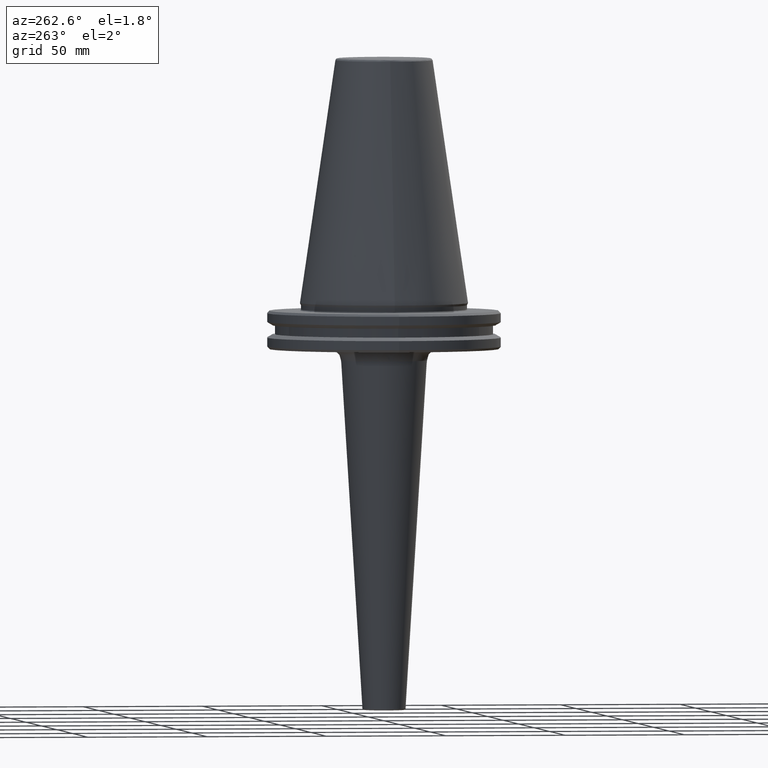
[diagram: clean part render]
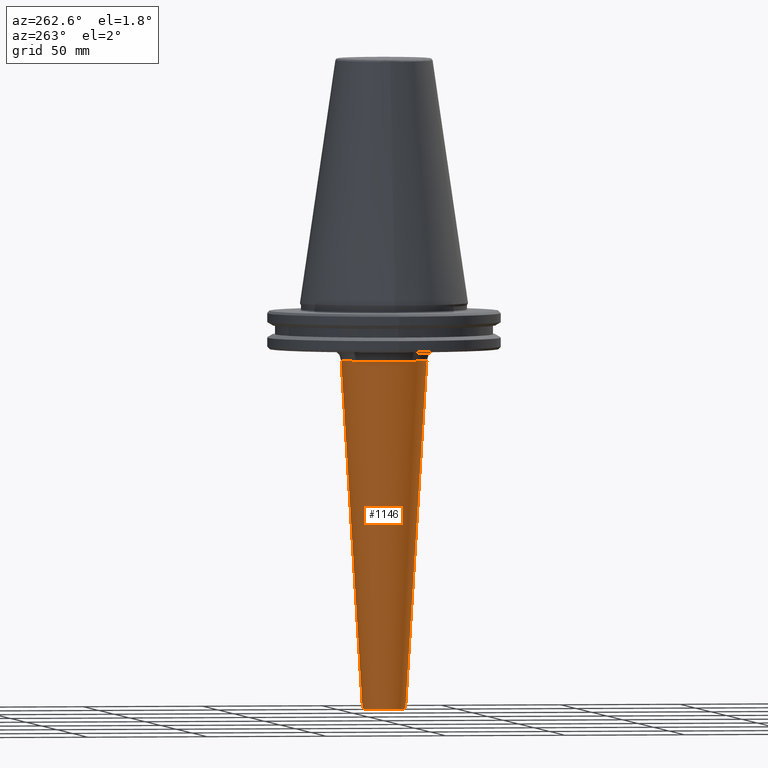
[diagram: same view with one face highlighted and labeled with its STEP entity id]
A machine part, auxiliary view. The second image highlights one B-rep face of the part: STEP entity #1146.
In plain terms, the highlighted conical surface has half-angle 3.529 deg.
Its self-contained STEP definition (entity closure, byte-faithful):
#9 = AXIS2_PLACEMENT_3D ( 'NONE', #1317, #1003, #1489 ) ;
#47 = DIRECTION ( 'NONE',  ( 0.0000000000000000000, -1.000000000000000000, -1.931694016260251200E-016 ) ) ;
#63 = VERTEX_POINT ( 'NONE', #1027 ) ;
#81 = CONICAL_SURFACE ( 'NONE', #1405, 17.96064450554360500, 0.06158867632756039700 ) ;
#119 = ORIENTED_EDGE ( 'NONE', *, *, #281, .T. ) ;
#124 = CARTESIAN_POINT ( 'NONE',  ( -17.96064450554360500, 0.0000000000000000000, -23.79225126145506100 ) ) ;
#125 = EDGE_CURVE ( 'NONE', #63, #1118, #417, .T. ) ;
#265 = LINE ( 'NONE', #742, #803 ) ;
#281 = EDGE_CURVE ( 'NONE', #968, #831, #883, .T. ) ;
#364 = DIRECTION ( 'NONE',  ( -1.000000000000000000, 0.0000000000000000000, 0.0000000000000000000 ) ) ;
#369 = DIRECTION ( 'NONE',  ( 0.0000000000000000000, 0.0000000000000000000, -1.000000000000000000 ) ) ;
#374 = LINE ( 'NONE', #1055, #743 ) ;
#383 = CARTESIAN_POINT ( 'NONE',  ( 0.0000000000000000000, 0.0000000000000000000, -23.79225126145506100 ) ) ;
#393 = ORIENTED_EDGE ( 'NONE', *, *, #125, .T. ) ;
#417 = CIRCLE ( 'NONE', #644, 17.96064450554360500 ) ;
#444 = VERTEX_POINT ( 'NONE', #1379 ) ;
#458 = EDGE_CURVE ( 'NONE', #831, #1319, #995, .T. ) ;
#497 = CARTESIAN_POINT ( 'NONE',  ( 0.0000000000000000000, 0.0000000000000000000, -23.79225126145507100 ) ) ;
#554 = EDGE_LOOP ( 'NONE', ( #1200, #119, #1241, #1077, #393, #1236 ) ) ;
#644 = AXIS2_PLACEMENT_3D ( 'NONE', #837, #867, #880 ) ;
#667 = DIRECTION ( 'NONE',  ( 7.537670152014071500E-018, 0.06154974770898907100, 0.9981040169025269200 ) ) ;
#670 = CARTESIAN_POINT ( 'NONE',  ( 0.0000000000000000000, -9.028935549445636300, -168.6307748738545100 ) ) ;
#742 = CARTESIAN_POINT ( 'NONE',  ( 2.199544580433747500E-015, 17.96064450554360500, -23.79225126145506800 ) ) ;
#743 = VECTOR ( 'NONE', #1423, 1000.000000000000000 ) ;
#744 = CARTESIAN_POINT ( 'NONE',  ( 1.652635141233689800E-015, 9.028935549445638000, -168.6307748738545100 ) ) ;
#803 = VECTOR ( 'NONE', #667, 1000.000000000000000 ) ;
#831 = VERTEX_POINT ( 'NONE', #871 ) ;
#837 = CARTESIAN_POINT ( 'NONE',  ( 0.0000000000000000000, 0.0000000000000000000, -23.79225126145506100 ) ) ;
#867 = DIRECTION ( 'NONE',  ( 0.0000000000000000000, 0.0000000000000000000, -1.000000000000000000 ) ) ;
#871 = CARTESIAN_POINT ( 'NONE',  ( -9.028935549445636300, 0.0000000000000000000, -168.6307748738545100 ) ) ;
#880 = DIRECTION ( 'NONE',  ( -1.000000000000000000, 0.0000000000000000000, 0.0000000000000000000 ) ) ;
#883 = CIRCLE ( 'NONE', #9, 9.028935549445638000 ) ;
#888 = DIRECTION ( 'NONE',  ( 0.0000000000000000000, -9.658470081301257200E-017, 1.000000000000000000 ) ) ;
#968 = VERTEX_POINT ( 'NONE', #744 ) ;
#971 = FACE_OUTER_BOUND ( 'NONE', #554, .T. ) ;
#972 = AXIS2_PLACEMENT_3D ( 'NONE', #1214, #1358, #1550 ) ;
#995 = CIRCLE ( 'NONE', #972, 9.028935549445638000 ) ;
#1003 = DIRECTION ( 'NONE',  ( 0.0000000000000000000, 0.0000000000000000000, 1.000000000000000000 ) ) ;
#1009 = EDGE_CURVE ( 'NONE', #968, #444, #265, .T. ) ;
#1027 = CARTESIAN_POINT ( 'NONE',  ( 0.0000000000000000000, -17.96064450554360500, -23.79225126145506100 ) ) ;
#1055 = CARTESIAN_POINT ( 'NONE',  ( 0.0000000000000000000, -17.96064450554360500, -23.79225126145507500 ) ) ;
#1077 = ORIENTED_EDGE ( 'NONE', *, *, #1143, .T. ) ;
#1118 = VERTEX_POINT ( 'NONE', #124 ) ;
#1143 = EDGE_CURVE ( 'NONE', #1319, #63, #374, .T. ) ;
#1146 = ADVANCED_FACE ( 'NONE', ( #971 ), #81, .T. ) ;
#1198 = AXIS2_PLACEMENT_3D ( 'NONE', #383, #369, #364 ) ;
#1200 = ORIENTED_EDGE ( 'NONE', *, *, #1009, .F. ) ;
#1214 = CARTESIAN_POINT ( 'NONE',  ( 0.0000000000000000000, 0.0000000000000000000, -168.6307748738545100 ) ) ;
#1236 = ORIENTED_EDGE ( 'NONE', *, *, #1333, .T. ) ;
#1241 = ORIENTED_EDGE ( 'NONE', *, *, #458, .T. ) ;
#1317 = CARTESIAN_POINT ( 'NONE',  ( 0.0000000000000000000, 0.0000000000000000000, -168.6307748738545100 ) ) ;
#1319 = VERTEX_POINT ( 'NONE', #670 ) ;
#1333 = EDGE_CURVE ( 'NONE', #1118, #444, #1520, .T. ) ;
#1358 = DIRECTION ( 'NONE',  ( 0.0000000000000000000, 0.0000000000000000000, 1.000000000000000000 ) ) ;
#1379 = CARTESIAN_POINT ( 'NONE',  ( 2.199544580433747500E-015, 17.96064450554360500, -23.79225126145506100 ) ) ;
#1405 = AXIS2_PLACEMENT_3D ( 'NONE', #497, #888, #47 ) ;
#1423 = DIRECTION ( 'NONE',  ( 0.0000000000000000000, -0.06154974770898926500, 0.9981040169025269200 ) ) ;
#1489 = DIRECTION ( 'NONE',  ( 1.000000000000000000, 0.0000000000000000000, 0.0000000000000000000 ) ) ;
#1520 = CIRCLE ( 'NONE', #1198, 17.96064450554360500 ) ;
#1550 = DIRECTION ( 'NONE',  ( 1.000000000000000000, 0.0000000000000000000, 0.0000000000000000000 ) ) ;